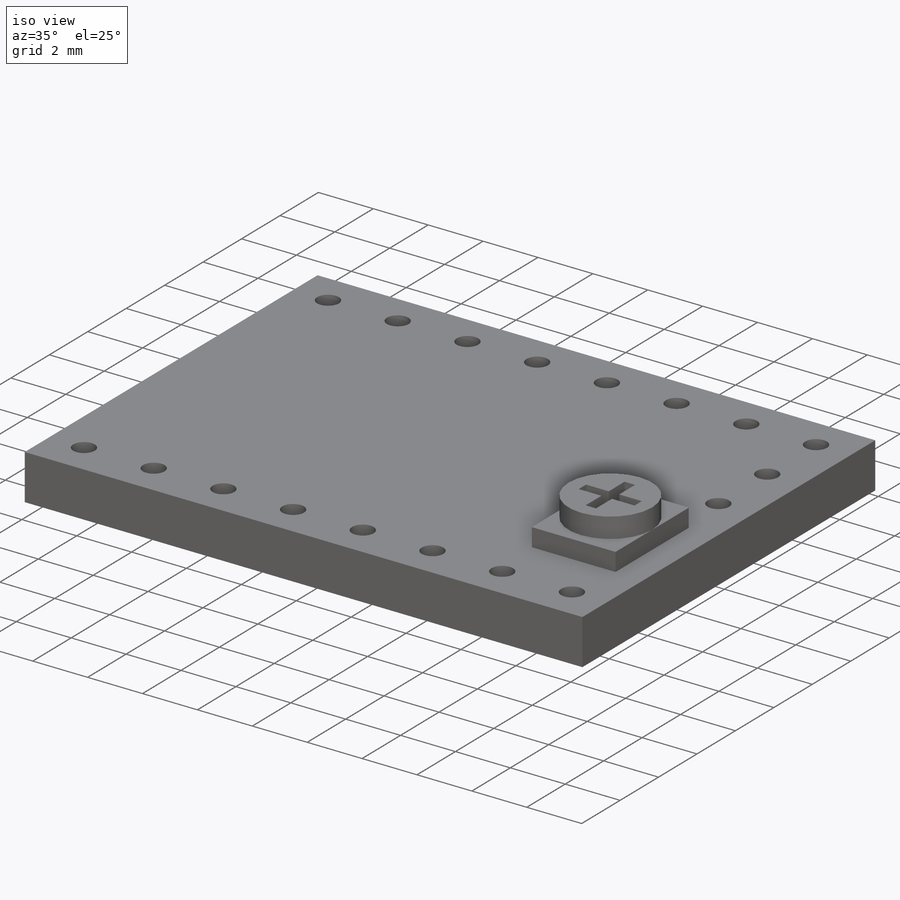
[diagram: iso view]
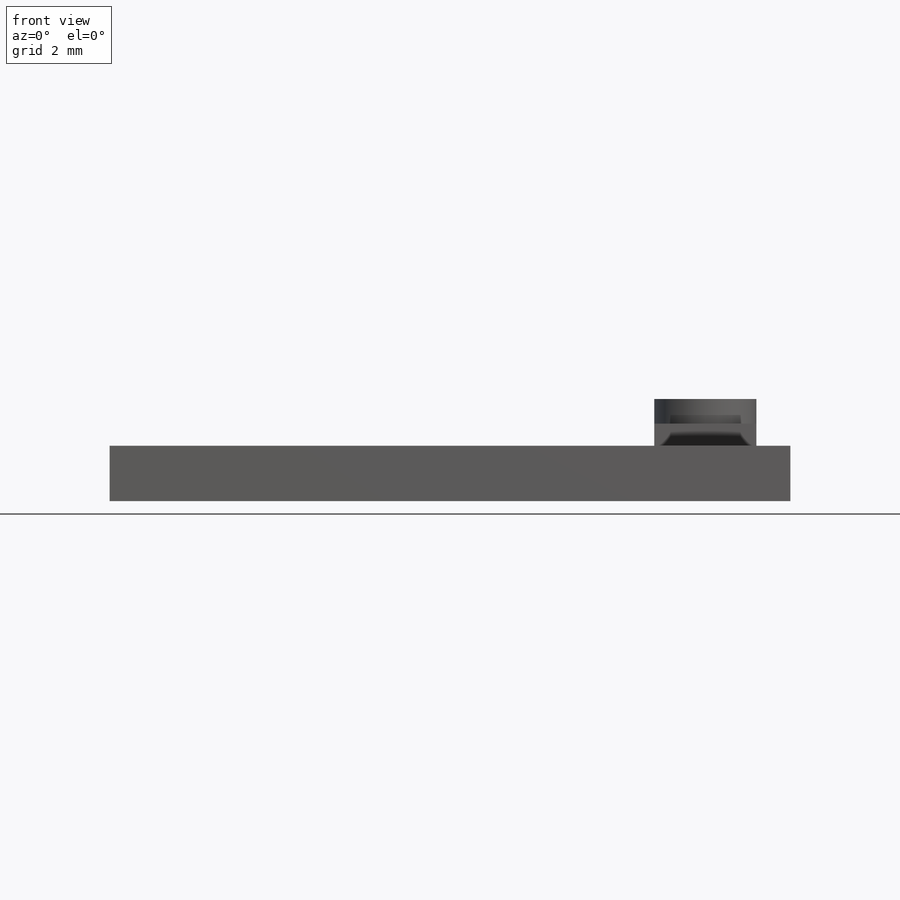
[diagram: front view]
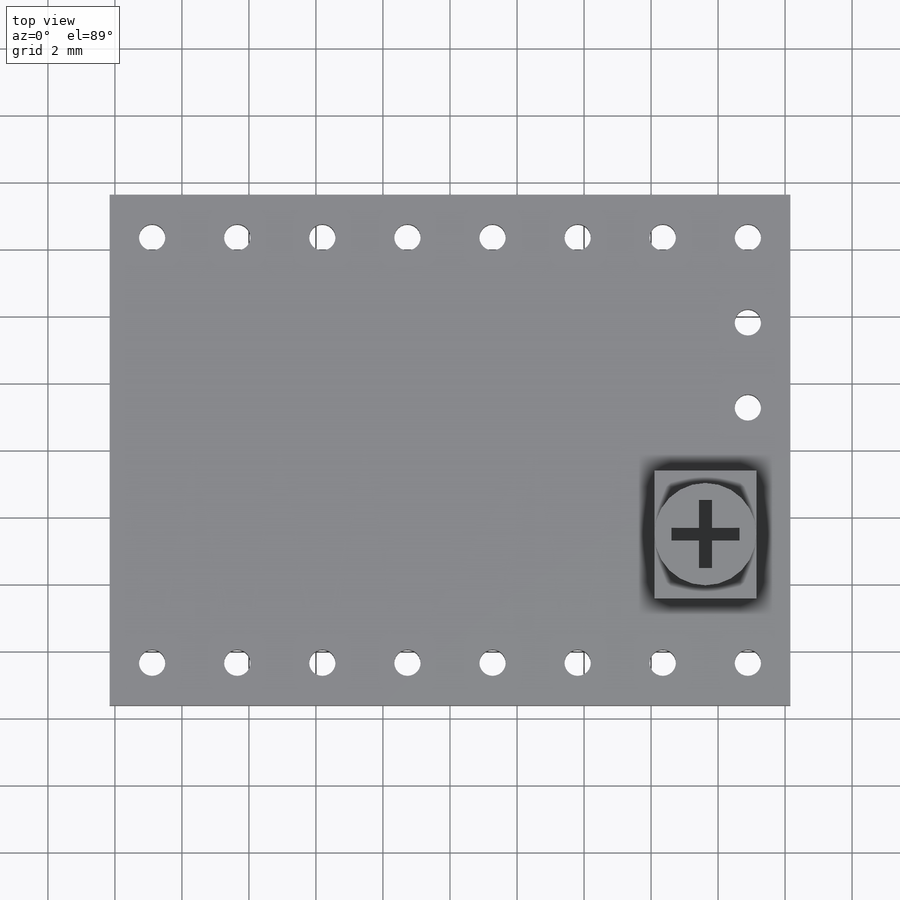
[diagram: top view]
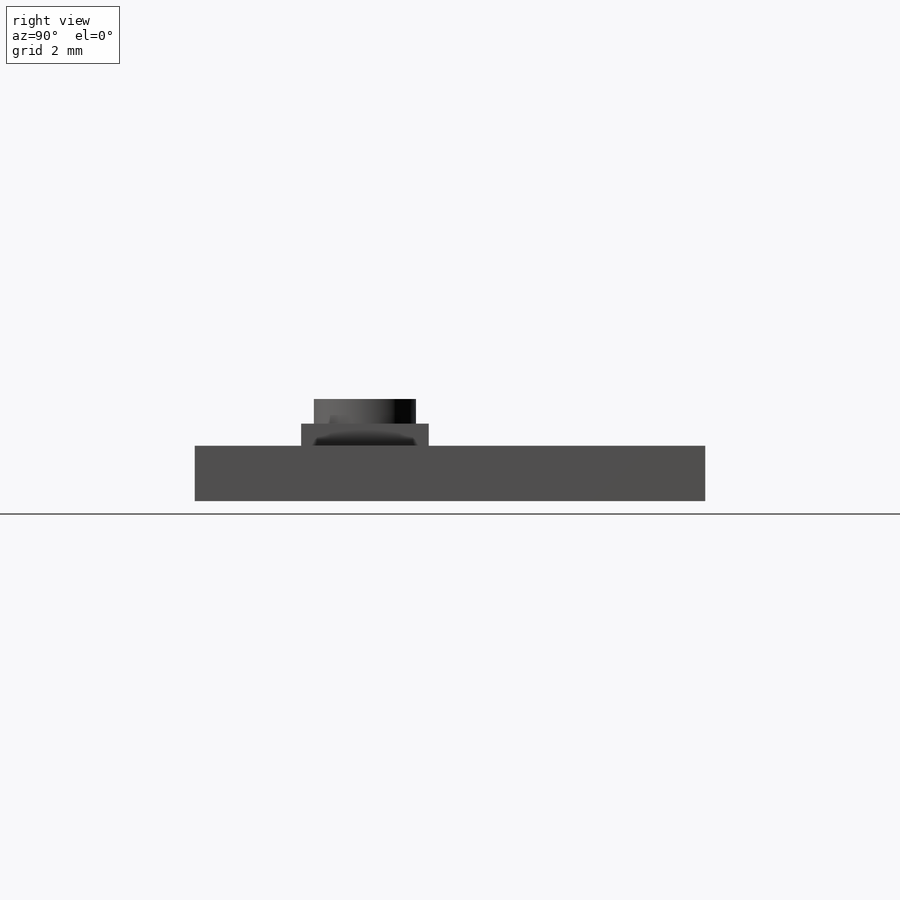
[diagram: right view]
SOLIDWORKS PART (.sldprt)
format: sldprt  version: not decoded by parser v0  size: 313,856 bytes
history: native  units: mm
features: sketch x5, extrude x3, cut_extrude x2, material x1, pattern_linear x1 (+13 scaffold rows collapsed)
feature tree (25):
  scaffold x13  (default folders/planes/origin — collapsed)
  material  "Material <not specified>"
  sketch  "Sketch1"  dims[D1=20.32mm D2=15.24mm]
  extrude  "Boss-Extrude1"  Depth=1.651mm
  sketch  "Sketch3"  dims[D1=3.048mm D2=1.016mm D3=2.794mm D4=3.81mm]
  extrude  "Boss-Extrude3"  Depth=2.3114mm
  sketch  "Sketch4"  dims[D1=3.048mm D2=0.381mm D3=2.032mm]
  extrude  "Boss-Extrude4"  Depth=3.048mm
  sketch  "Sketch7"  dims[D1=0.7874mm D2=1.27mm D3=1.27mm]
  cut_extrude  "Cut-Extrude2"  [1 undecoded]
  pattern_linear  "LPattern2"  Count1=8 Count2=2 Spacing1=2.54mm Spacing2=12.7mm
  sketch  "Sketch8"  dims[c1.D1=0.7874mm c1.D2=0.7874mm c2.D1=2.54mm c2.D2=2.54mm]
  cut_extrude  "Cut-Extrude3"  [1 undecoded]
decode coverage: 9 of 11 modeling features carry decoded parameters
note: 2 parameter values undecoded
note: suppression state not decoded; provenance and decode notes live in map.json
